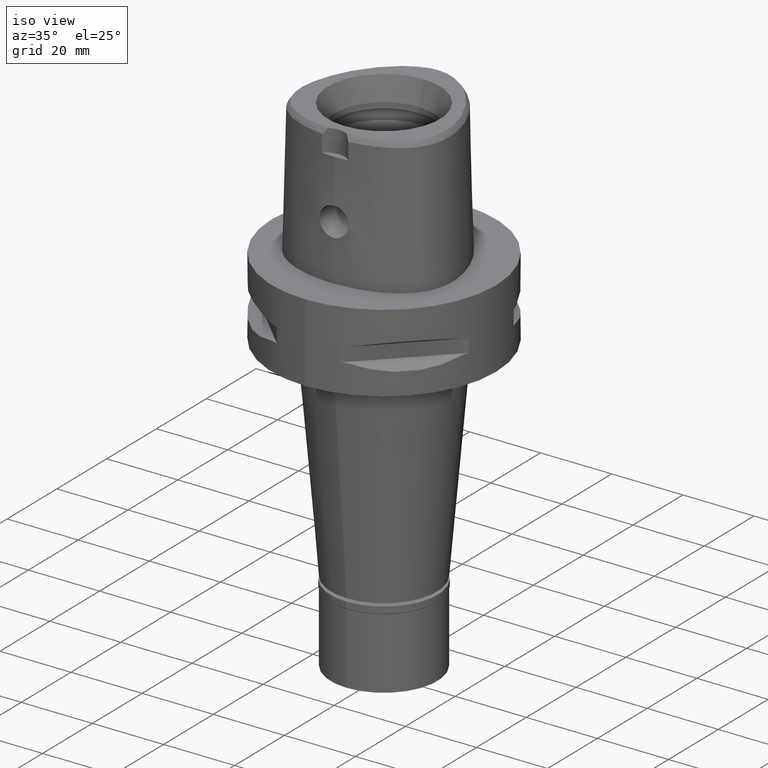
[diagram: clean part render]
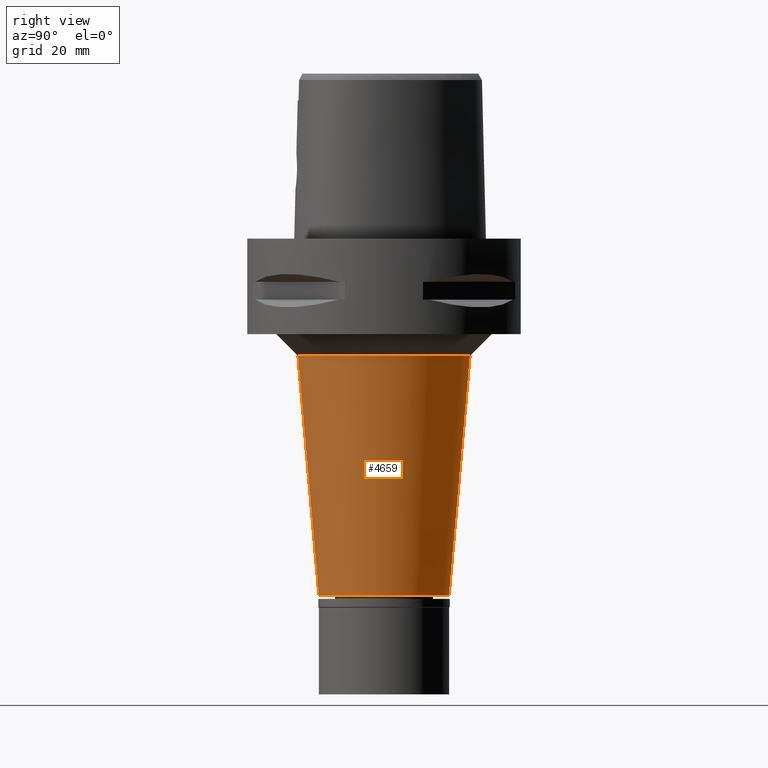
[diagram: tour spotlight — one face highlighted and labeled with its STEP entity id]
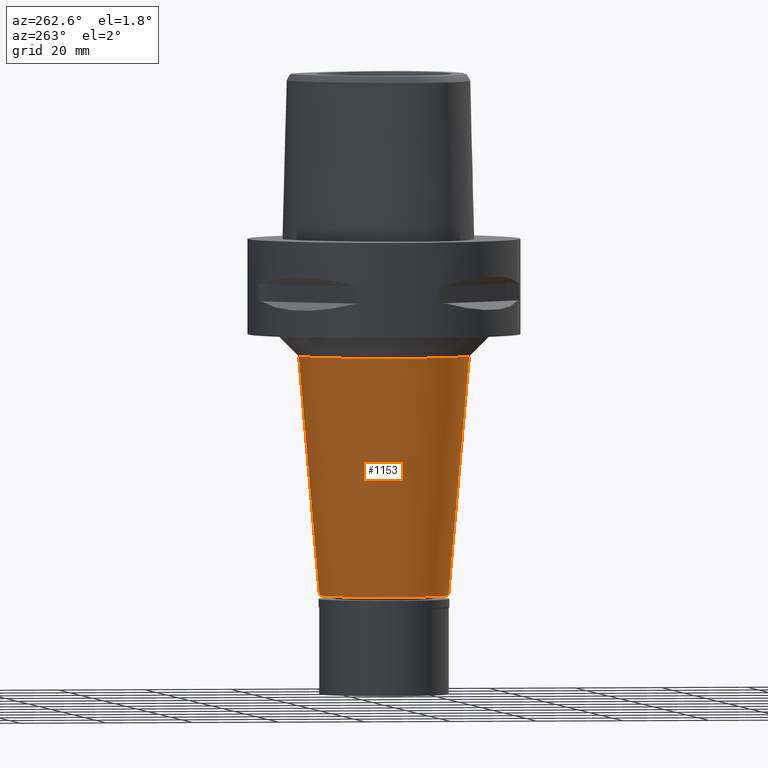
[diagram: tour spotlight — one face highlighted and labeled with its STEP entity id]
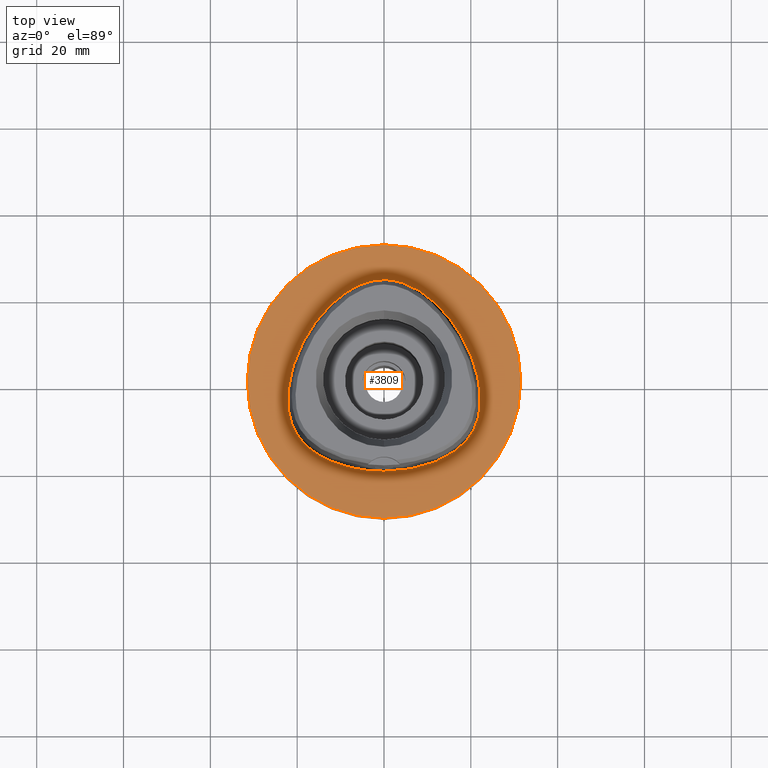
[diagram: tour spotlight — one face highlighted and labeled with its STEP entity id]
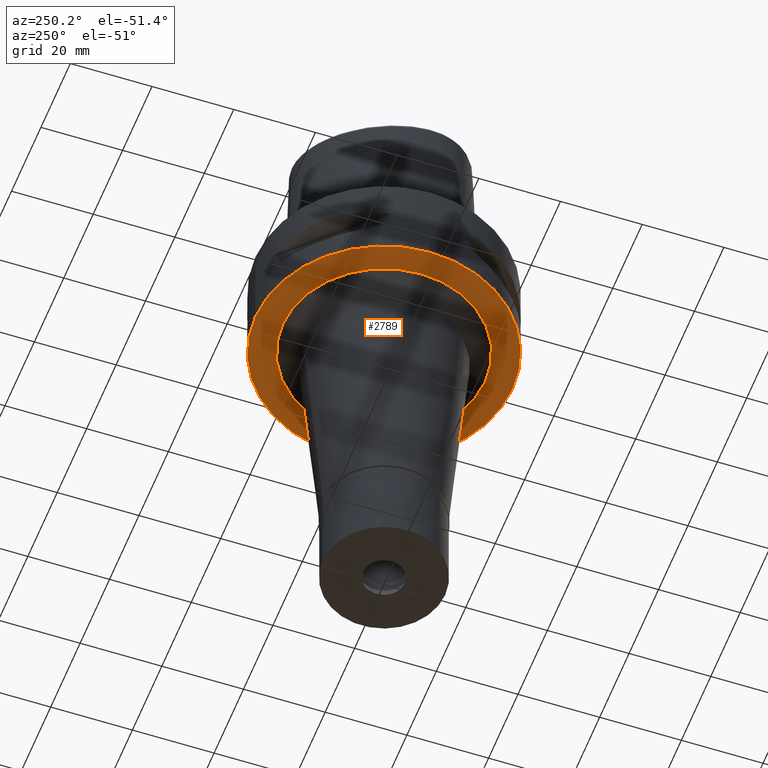
[diagram: tour spotlight — one face highlighted and labeled with its STEP entity id]
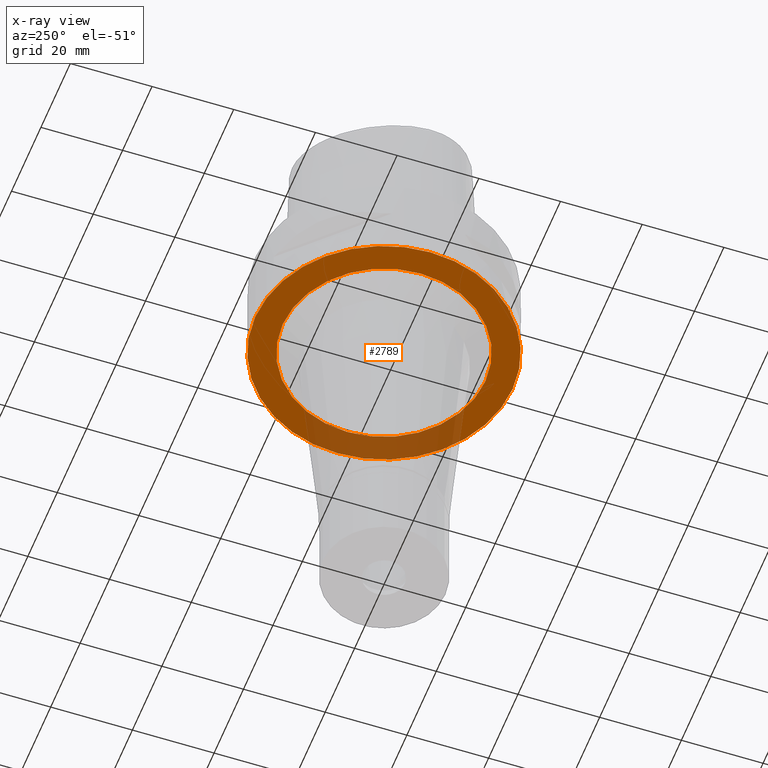
[diagram: x-ray of the same camera — body ghosted, this tour face saturated]
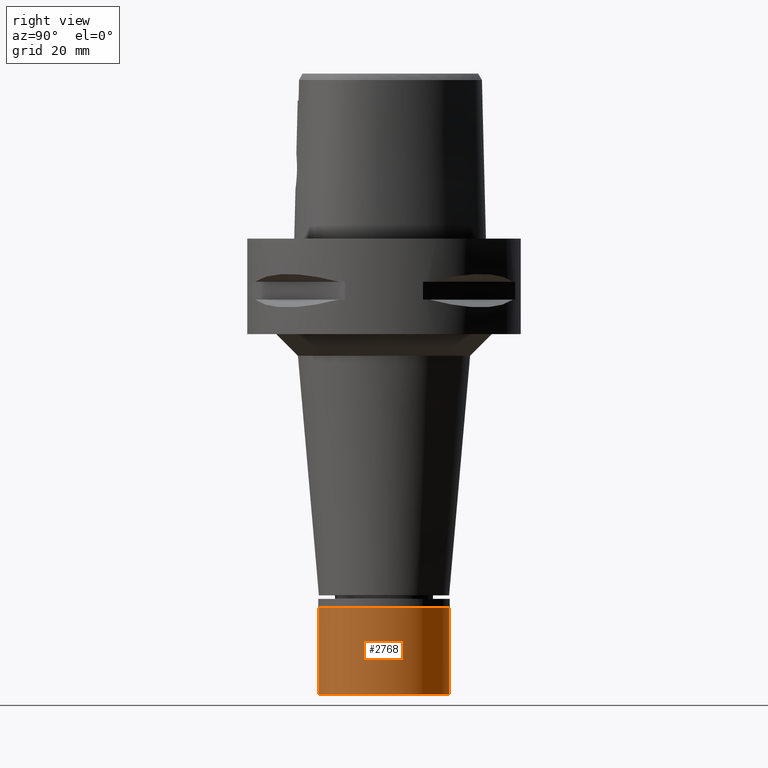
[diagram: tour spotlight — one face highlighted and labeled with its STEP entity id]
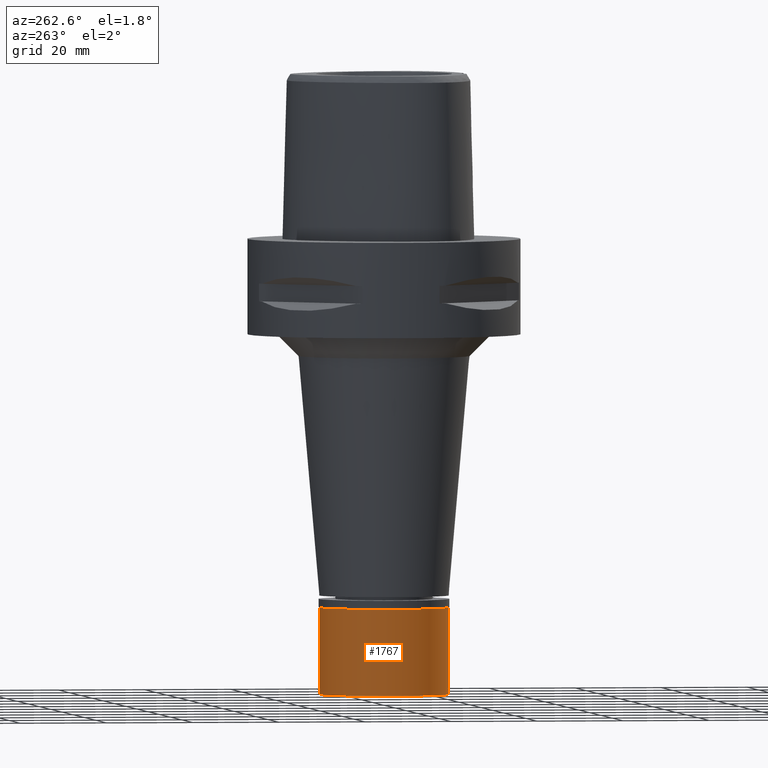
[diagram: tour spotlight — one face highlighted and labeled with its STEP entity id]
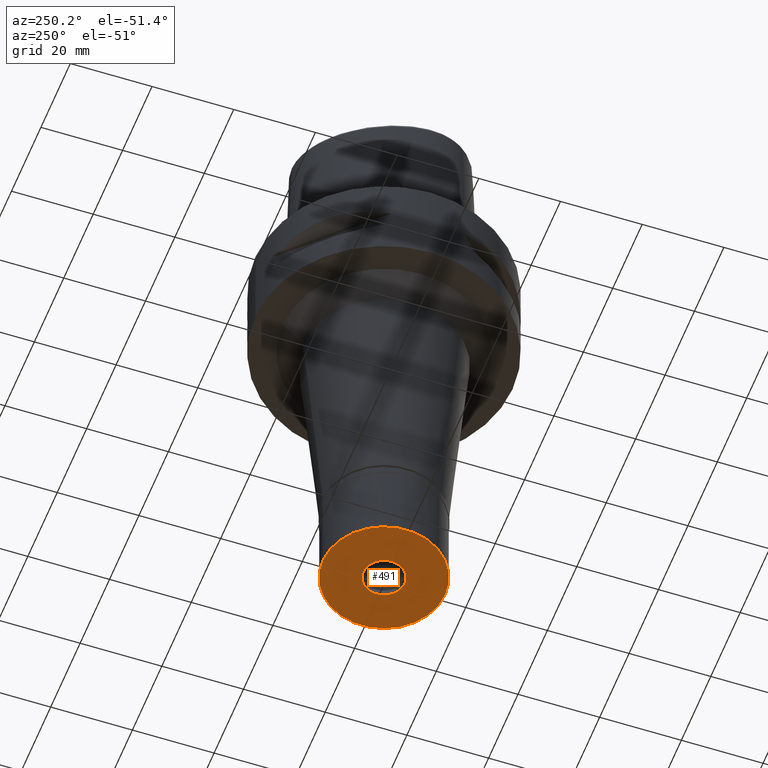
[diagram: tour spotlight — one face highlighted and labeled with its STEP entity id]
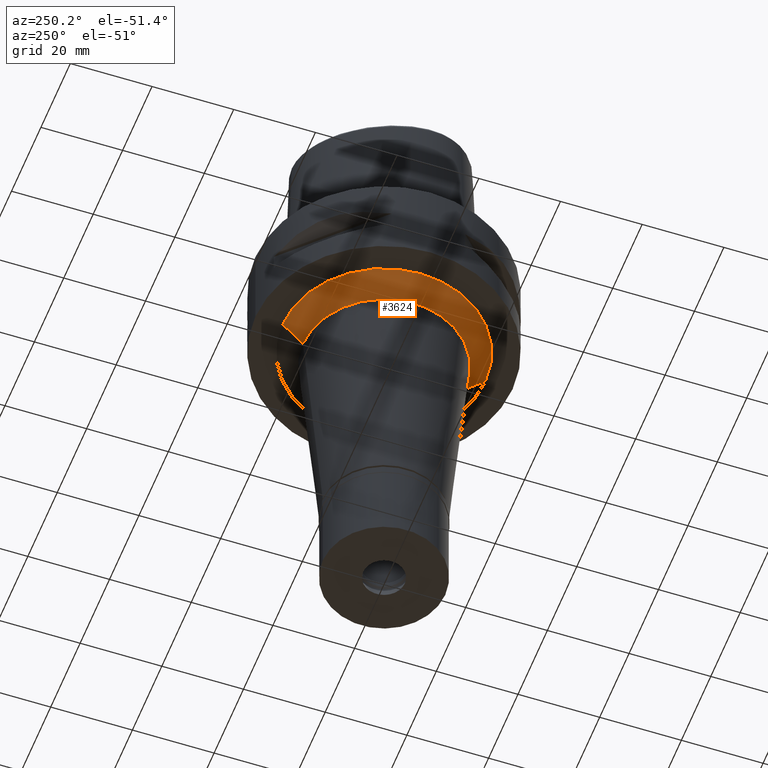
[diagram: tour spotlight — one face highlighted and labeled with its STEP entity id]
A machine part: a face-by-face anatomy tour. The part has 100 B-rep faces; the first image is the clean iso view, then the 8 largest visible faces are spotlighted one at a time (largest first), each with its STEP entity span.

Face 1 — right view, entity #4659. In plain terms, the highlighted conical surface has half-angle 5 deg.
Definition (entity closure, byte-faithful):
#25 = CARTESIAN_POINT ( 'NONE',  ( 0.0000000000000000000, -19.82937422663000149, -27.00000000000000000 ) ) ;
#178 = DIRECTION ( 'NONE',  ( 0.0000000000000000000, 0.0000000000000000000, 1.000000000000000000 ) ) ;
#235 = VECTOR ( 'NONE', #2053, 1000.000000000000114 ) ;
#330 = CARTESIAN_POINT ( 'NONE',  ( 0.0000000000000000000, 0.0000000000000000000, -82.19999999999998863 ) ) ;
#389 = AXIS2_PLACEMENT_3D ( 'NONE', #1570, #2321, #4963 ) ;
#490 = CARTESIAN_POINT ( 'NONE',  ( 0.0000000000000000000, -19.82937422663000149, -27.00000000000000000 ) ) ;
#679 = EDGE_CURVE ( 'NONE', #2207, #4305, #1675, .T. ) ;
#875 = LINE ( 'NONE', #490, #235 ) ;
#1225 = EDGE_LOOP ( 'NONE', ( #4009, #2765, #2137, #3074 ) ) ;
#1416 = VERTEX_POINT ( 'NONE', #25 ) ;
#1570 = CARTESIAN_POINT ( 'NONE',  ( 0.0000000000000000000, 0.0000000000000000000, -27.00000000000000000 ) ) ;
#1573 = CARTESIAN_POINT ( 'NONE',  ( 0.0000000000000000000, 19.82937422663000149, -27.00000000000000000 ) ) ;
#1675 = LINE ( 'NONE', #1573, #3559 ) ;
#1705 = CARTESIAN_POINT ( 'NONE',  ( 0.0000000000000000000, 19.82937422663000149, -27.00000000000000000 ) ) ;
#2053 = DIRECTION ( 'NONE',  ( 0.0000000000000000000, 0.08715574274764407992, -0.9961946980917467664 ) ) ;
#2137 = ORIENTED_EDGE ( 'NONE', *, *, #4267, .T. ) ;
#2207 = VERTEX_POINT ( 'NONE', #1705 ) ;
#2321 = DIRECTION ( 'NONE',  ( 0.0000000000000000000, 0.0000000000000000000, 1.000000000000000000 ) ) ;
#2364 = EDGE_CURVE ( 'NONE', #1416, #4188, #875, .T. ) ;
#2662 = CIRCLE ( 'NONE', #3669, 15.00000000000000000 ) ;
#2679 = CARTESIAN_POINT ( 'NONE',  ( 0.0000000000000000000, 15.00000000000000000, -82.19999999999998863 ) ) ;
#2699 = DIRECTION ( 'NONE',  ( 0.0000000000000000000, -1.000000000000000000, 0.0000000000000000000 ) ) ;
#2716 = CARTESIAN_POINT ( 'NONE',  ( 0.0000000000000000000, -15.00000000000000000, -82.19999999999998863 ) ) ;
#2752 = CONICAL_SURFACE ( 'NONE', #4860, 17.41468711331999941, 0.08726646259969973729 ) ;
#2765 = ORIENTED_EDGE ( 'NONE', *, *, #2364, .T. ) ;
#2837 = CIRCLE ( 'NONE', #389, 19.82937422664000238 ) ;
#2940 = FACE_OUTER_BOUND ( 'NONE', #1225, .T. ) ;
#2961 = CARTESIAN_POINT ( 'NONE',  ( 0.0000000000000000000, 0.0000000000000000000, -54.60000000000000142 ) ) ;
#3074 = ORIENTED_EDGE ( 'NONE', *, *, #679, .F. ) ;
#3559 = VECTOR ( 'NONE', #4787, 1000.000000000000114 ) ;
#3669 = AXIS2_PLACEMENT_3D ( 'NONE', #330, #3887, #2699 ) ;
#3887 = DIRECTION ( 'NONE',  ( 0.0000000000000000000, 0.0000000000000000000, 1.000000000000000000 ) ) ;
#4009 = ORIENTED_EDGE ( 'NONE', *, *, #4368, .F. ) ;
#4188 = VERTEX_POINT ( 'NONE', #2716 ) ;
#4267 = EDGE_CURVE ( 'NONE', #4188, #4305, #2662, .T. ) ;
#4305 = VERTEX_POINT ( 'NONE', #2679 ) ;
#4368 = EDGE_CURVE ( 'NONE', #1416, #2207, #2837, .T. ) ;
#4659 = ADVANCED_FACE ( 'NONE', ( #2940 ), #2752, .T. ) ;
#4787 = DIRECTION ( 'NONE',  ( 0.0000000000000000000, -0.08715574274764407992, -0.9961946980917467664 ) ) ;
#4841 = DIRECTION ( 'NONE',  ( 0.0000000000000000000, 1.000000000000000000, 0.0000000000000000000 ) ) ;
#4860 = AXIS2_PLACEMENT_3D ( 'NONE', #2961, #178, #4841 ) ;
#4963 = DIRECTION ( 'NONE',  ( 0.0000000000000000000, -1.000000000000000000, 0.0000000000000000000 ) ) ;

Face 2 — auxiliary view, entity #1153. In plain terms, the highlighted conical surface has half-angle 5 deg.
Definition (entity closure, byte-faithful):
#25 = CARTESIAN_POINT ( 'NONE',  ( 0.0000000000000000000, -19.82937422663000149, -27.00000000000000000 ) ) ;
#235 = VECTOR ( 'NONE', #2053, 1000.000000000000114 ) ;
#300 = CONICAL_SURFACE ( 'NONE', #639, 17.41468711331999941, 0.08726646259969973729 ) ;
#435 = CARTESIAN_POINT ( 'NONE',  ( 0.0000000000000000000, 0.0000000000000000000, -82.19999999999998863 ) ) ;
#490 = CARTESIAN_POINT ( 'NONE',  ( 0.0000000000000000000, -19.82937422663000149, -27.00000000000000000 ) ) ;
#639 = AXIS2_PLACEMENT_3D ( 'NONE', #3084, #2299, #1104 ) ;
#679 = EDGE_CURVE ( 'NONE', #2207, #4305, #1675, .T. ) ;
#734 = ORIENTED_EDGE ( 'NONE', *, *, #2364, .F. ) ;
#875 = LINE ( 'NONE', #490, #235 ) ;
#1023 = ORIENTED_EDGE ( 'NONE', *, *, #2106, .T. ) ;
#1104 = DIRECTION ( 'NONE',  ( 0.0000000000000000000, 1.000000000000000000, 0.0000000000000000000 ) ) ;
#1134 = CIRCLE ( 'NONE', #3075, 19.82937422663000149 ) ;
#1153 = ADVANCED_FACE ( 'NONE', ( #3375 ), #300, .T. ) ;
#1416 = VERTEX_POINT ( 'NONE', #25 ) ;
#1573 = CARTESIAN_POINT ( 'NONE',  ( 0.0000000000000000000, 19.82937422663000149, -27.00000000000000000 ) ) ;
#1574 = DIRECTION ( 'NONE',  ( 0.0000000000000000000, 0.0000000000000000000, -1.000000000000000000 ) ) ;
#1675 = LINE ( 'NONE', #1573, #3559 ) ;
#1705 = CARTESIAN_POINT ( 'NONE',  ( 0.0000000000000000000, 19.82937422663000149, -27.00000000000000000 ) ) ;
#1924 = DIRECTION ( 'NONE',  ( 0.0000000000000000000, -1.000000000000000000, 0.0000000000000000000 ) ) ;
#1942 = EDGE_CURVE ( 'NONE', #1416, #2207, #1134, .T. ) ;
#1993 = DIRECTION ( 'NONE',  ( 0.0000000000000000000, 1.000000000000000000, 0.0000000000000000000 ) ) ;
#2053 = DIRECTION ( 'NONE',  ( 0.0000000000000000000, 0.08715574274764407992, -0.9961946980917467664 ) ) ;
#2106 = EDGE_CURVE ( 'NONE', #4305, #4188, #3987, .T. ) ;
#2207 = VERTEX_POINT ( 'NONE', #1705 ) ;
#2299 = DIRECTION ( 'NONE',  ( 0.0000000000000000000, 0.0000000000000000000, 1.000000000000000000 ) ) ;
#2364 = EDGE_CURVE ( 'NONE', #1416, #4188, #875, .T. ) ;
#2399 = DIRECTION ( 'NONE',  ( 0.0000000000000000000, 0.0000000000000000000, 1.000000000000000000 ) ) ;
#2432 = AXIS2_PLACEMENT_3D ( 'NONE', #435, #2399, #1993 ) ;
#2679 = CARTESIAN_POINT ( 'NONE',  ( 0.0000000000000000000, 15.00000000000000000, -82.19999999999998863 ) ) ;
#2716 = CARTESIAN_POINT ( 'NONE',  ( 0.0000000000000000000, -15.00000000000000000, -82.19999999999998863 ) ) ;
#3075 = AXIS2_PLACEMENT_3D ( 'NONE', #4270, #1574, #1924 ) ;
#3084 = CARTESIAN_POINT ( 'NONE',  ( 0.0000000000000000000, 0.0000000000000000000, -54.60000000000000142 ) ) ;
#3375 = FACE_OUTER_BOUND ( 'NONE', #3595, .T. ) ;
#3556 = ORIENTED_EDGE ( 'NONE', *, *, #679, .T. ) ;
#3559 = VECTOR ( 'NONE', #4787, 1000.000000000000114 ) ;
#3595 = EDGE_LOOP ( 'NONE', ( #1023, #734, #4170, #3556 ) ) ;
#3987 = CIRCLE ( 'NONE', #2432, 15.00000000000000000 ) ;
#4170 = ORIENTED_EDGE ( 'NONE', *, *, #1942, .T. ) ;
#4188 = VERTEX_POINT ( 'NONE', #2716 ) ;
#4270 = CARTESIAN_POINT ( 'NONE',  ( 0.0000000000000000000, 0.0000000000000000000, -27.00000000000000000 ) ) ;
#4305 = VERTEX_POINT ( 'NONE', #2679 ) ;
#4787 = DIRECTION ( 'NONE',  ( 0.0000000000000000000, -0.08715574274764407992, -0.9961946980917467664 ) ) ;

Face 3 — top view, entity #3809. In plain terms, the highlighted planar face has unit normal (0, 0, -1).
Definition (entity closure, byte-faithful):
#95 = CARTESIAN_POINT ( 'NONE',  ( 0.0000000000000000000, 0.0000000000000000000, 0.0000000000000000000 ) ) ;
#197 = VERTEX_POINT ( 'NONE', #3954 ) ;
#244 = CARTESIAN_POINT ( 'NONE',  ( -1.042620331105000251E-11, -20.67499999999999716, 1.260473207290999897E-13 ) ) ;
#265 = CARTESIAN_POINT ( 'NONE',  ( -14.40795638994645067, 15.64093750030242091, -1.905867336778749310E-08 ) ) ;
#269 = EDGE_CURVE ( 'NONE', #1082, #2442, #1519, .T. ) ;
#285 = CARTESIAN_POINT ( 'NONE',  ( 18.56841063353252963, -14.16937986587638321, 9.817071448022917507E-07 ) ) ;
#339 = CARTESIAN_POINT ( 'NONE',  ( 5.537052849976000441E-11, 23.47499999999000053, 1.231977482991999938E-13 ) ) ;
#367 = EDGE_LOOP ( 'NONE', ( #910, #3071 ) ) ;
#676 = CARTESIAN_POINT ( 'NONE',  ( -2.564517727055091179, 23.29328125047070230, -1.905867336778749310E-08 ) ) ;
#766 = CARTESIAN_POINT ( 'NONE',  ( 10.74572889472394621, 19.17433591859747466, 9.817071448022917507E-07 ) ) ;
#818 = DIRECTION ( 'NONE',  ( 0.0000000000000000000, 0.0000000000000000000, -1.000000000000000000 ) ) ;
#910 = ORIENTED_EDGE ( 'NONE', *, *, #3396, .F. ) ;
#965 = ORIENTED_EDGE ( 'NONE', *, *, #3579, .F. ) ;
#1024 = CARTESIAN_POINT ( 'NONE',  ( -5.098437017460804022, 22.52602539107423141, -1.905867336778749310E-08 ) ) ;
#1056 = AXIS2_PLACEMENT_3D ( 'NONE', #2078, #3634, #1785 ) ;
#1071 = CARTESIAN_POINT ( 'NONE',  ( 0.8548392405695658391, 23.47499997546010064, 9.817071448022917507E-07 ) ) ;
#1082 = VERTEX_POINT ( 'NONE', #2648 ) ;
#1113 = CARTESIAN_POINT ( 'NONE',  ( 22.05732871882319657, -6.847636715243154981, 9.817071448022917507E-07 ) ) ;
#1169 = VERTEX_POINT ( 'NONE', #1845 ) ;
#1193 = DIRECTION ( 'NONE',  ( 0.0000000000000000000, 1.000000000000000000, 0.0000000000000000000 ) ) ;
#1337 = EDGE_LOOP ( 'NONE', ( #1670, #965 ) ) ;
#1413 = CARTESIAN_POINT ( 'NONE',  ( -20.34961798598781257, -11.74885742211308148, -1.905867336778749310E-08 ) ) ;
#1452 = CARTESIAN_POINT ( 'NONE',  ( 22.24453905393284714, -4.100468750144046659, 9.817071448022917507E-07 ) ) ;
#1479 = CARTESIAN_POINT ( 'NONE',  ( 5.537052849976000441E-11, 23.47499999999000053, 1.231977482991999938E-13 ) ) ;
#1481 = CARTESIAN_POINT ( 'NONE',  ( -11.23259756743561688, -18.89324218795852062, -1.905867336778749310E-08 ) ) ;
#1501 = CARTESIAN_POINT ( 'NONE',  ( -22.24453907902966066, -4.100468749996661444, -1.905867336778749310E-08 ) ) ;
#1519 = B_SPLINE_CURVE_WITH_KNOTS ( 'NONE', 3,
 ( #339, #2201, #676, #1024, #5003, #2619, #265, #3760, #2290, #3851, #1501, #3004, #4905, #3416, #1413, #2240, #3802, #3045, #4979, #1481, #3024, #3344, #244 ),
 .UNSPECIFIED., .F., .F.,
 ( 4, 1, 1, 1, 1, 1, 1, 1, 1, 1, 1, 1, 1, 1, 1, 1, 1, 1, 1, 1, 4 ),
 ( 0.0000000000000000000, 0.04166666666751999565, 0.08333333333413001087, 0.1250000000007999990, 0.1666666666674000152, 0.2500000000006000200, 0.3333333333337999971, 0.4166666666671000052, 0.5000000000002999823, 0.5416666666670000296, 0.5833333333335000148, 0.6250000000001999512, 0.6458333333335000148, 0.6666666666667999674, 0.6875000000001000311, 0.7083333333333999837, 0.7500000000000000000, 0.7916666666667000474, 0.8333333333333000637, 0.9166666666666000163, 1.000000000000000000 ),
 .UNSPECIFIED. ) ;
#1670 = ORIENTED_EDGE ( 'NONE', *, *, #269, .F. ) ;
#1785 = DIRECTION ( 'NONE',  ( 0.0000000000000000000, -1.000000000000000000, 0.0000000000000000000 ) ) ;
#1808 = FACE_BOUND ( 'NONE', #1337, .T. ) ;
#1845 = CARTESIAN_POINT ( 'NONE',  ( 0.0000000000000000000, 31.50000000000000000, 0.0000000000000000000 ) ) ;
#1904 = CARTESIAN_POINT ( 'NONE',  ( 6.341471014851029153, -20.29812497571617769, 9.817071448022917507E-07 ) ) ;
#1927 = CARTESIAN_POINT ( 'NONE',  ( 20.93173249966272209, -10.60431639625411471, 9.817071448022917507E-07 ) ) ;
#2078 = CARTESIAN_POINT ( 'NONE',  ( 0.0000000000000000000, 0.0000000000000000000, 0.0000000000000000000 ) ) ;
#2164 = CARTESIAN_POINT ( 'NONE',  ( -1.042620331105000251E-11, -20.67499999999999716, 1.260473207290999897E-13 ) ) ;
#2201 = CARTESIAN_POINT ( 'NONE',  ( -0.8548392423343361690, 23.47500000047769930, -1.905867336778749310E-08 ) ) ;
#2238 = CARTESIAN_POINT ( 'NONE',  ( 19.64947363874777153, -12.82525389180143804, 9.817071448022917507E-07 ) ) ;
#2240 = CARTESIAN_POINT ( 'NONE',  ( -19.64947365902260046, -12.82525390652307173, -1.905867336778749310E-08 ) ) ;
#2290 = CARTESIAN_POINT ( 'NONE',  ( -20.74942740924770845, 4.657187500162146776, -1.905867336778749310E-08 ) ) ;
#2327 = CARTESIAN_POINT ( 'NONE',  ( 2.564517721911329762, 23.29328122582817784, 9.817071448022917507E-07 ) ) ;
#2442 = VERTEX_POINT ( 'NONE', #2164 ) ;
#2526 = AXIS2_PLACEMENT_3D ( 'NONE', #95, #818, #3631 ) ;
#2619 = CARTESIAN_POINT ( 'NONE',  ( -10.74572891090422111, 19.17433593786475043, -1.905867336778749310E-08 ) ) ;
#2648 = CARTESIAN_POINT ( 'NONE',  ( 5.537052849976000441E-11, 23.47499999999000053, 1.231977482991999938E-13 ) ) ;
#2656 = CARTESIAN_POINT ( 'NONE',  ( 2.113823671608610066, -20.67499997545576562, 9.817071448022917507E-07 ) ) ;
#2707 = CARTESIAN_POINT ( 'NONE',  ( 14.67337963200851370, -17.21410154110925816, 9.817071448022917507E-07 ) ) ;
#2758 = AXIS2_PLACEMENT_3D ( 'NONE', #4304, #3262, #1193 ) ;
#3004 = CARTESIAN_POINT ( 'NONE',  ( -22.05732874369826746, -6.847636718817725843, -1.905867336778749310E-08 ) ) ;
#3024 = CARTESIAN_POINT ( 'NONE',  ( -6.341471019296731626, -20.29812500047623658, -1.905867336778749310E-08 ) ) ;
#3042 = CARTESIAN_POINT ( 'NONE',  ( 20.34961796427436553, -11.74885740957937053, 9.817071448022917507E-07 ) ) ;
#3045 = CARTESIAN_POINT ( 'NONE',  ( -16.95889172622826280, -15.67838867224692301, -1.905867336778749310E-08 ) ) ;
#3066 = CARTESIAN_POINT ( 'NONE',  ( -1.042620331105000251E-11, -20.67499999999999716, 1.260473207290999897E-13 ) ) ;
#3071 = ORIENTED_EDGE ( 'NONE', *, *, #4559, .F. ) ;
#3252 = CIRCLE ( 'NONE', #2526, 31.50000000000000000 ) ;
#3262 = DIRECTION ( 'NONE',  ( 0.0000000000000000000, 0.0000000000000000000, -1.000000000000000000 ) ) ;
#3344 = CARTESIAN_POINT ( 'NONE',  ( -2.113823673092658506, -20.67500000047413877, -1.905867336778749310E-08 ) ) ;
#3354 = PLANE ( 'NONE',  #1056 ) ;
#3396 = EDGE_CURVE ( 'NONE', #1169, #197, #4317, .T. ) ;
#3410 = CARTESIAN_POINT ( 'NONE',  ( 7.571159421916950016, 21.31457029124798552, 9.817071448022917507E-07 ) ) ;
#3416 = CARTESIAN_POINT ( 'NONE',  ( -20.93173252255313699, -10.60431640644926787, -1.905867336778749310E-08 ) ) ;
#3454 = CARTESIAN_POINT ( 'NONE',  ( 14.40795637072121593, 15.64093748407562678, 9.817071448022917507E-07 ) ) ;
#3579 = EDGE_CURVE ( 'NONE', #2442, #1082, #4159, .T. ) ;
#3631 = DIRECTION ( 'NONE',  ( 0.0000000000000000000, -1.000000000000000000, 0.0000000000000000000 ) ) ;
#3634 = DIRECTION ( 'NONE',  ( 0.0000000000000000000, 0.0000000000000000000, -1.000000000000000000 ) ) ;
#3760 = CARTESIAN_POINT ( 'NONE',  ( -18.06826688568335726, 10.43171875024557949, -1.905867336778749310E-08 ) ) ;
#3802 = CARTESIAN_POINT ( 'NONE',  ( -18.56841065177191297, -14.16937988314320229, -1.905867336778749310E-08 ) ) ;
#3809 = ADVANCED_FACE ( 'NONE', ( #4460, #1808 ), #3354, .F. ) ;
#3851 = CARTESIAN_POINT ( 'NONE',  ( -21.97832647834080078, -0.2810937499166801246, -1.905867336778749310E-08 ) ) ;
#3954 = CARTESIAN_POINT ( 'NONE',  ( 0.0000000000000000000, -31.50000000000000000, 0.0000000000000000000 ) ) ;
#4159 = B_SPLINE_CURVE_WITH_KNOTS ( 'NONE', 3,
 ( #3066, #2656, #1904, #4641, #2707, #4947, #285, #2238, #3042, #1927, #4616, #1113, #1452, #4571, #4592, #4183, #3454, #766, #3410, #4226, #2327, #1071, #1479 ),
 .UNSPECIFIED., .F., .F.,
 ( 4, 1, 1, 1, 1, 1, 1, 1, 1, 1, 1, 1, 1, 1, 1, 1, 1, 1, 1, 1, 4 ),
 ( 0.0000000000000000000, 0.08333333333343000138, 0.1666666666668000230, 0.2083333333333000081, 0.2500000000000000000, 0.2916666666666999919, 0.3125000000000000000, 0.3333333333333000081, 0.3541666666666999919, 0.3750000000000000000, 0.4166666666666000163, 0.4583333333332000326, 0.4999999999998999689, 0.5833333333332000326, 0.6666666666664999852, 0.7499999999998000488, 0.8333333333329999704, 0.8749999999997000177, 0.9166666666664000651, 0.9583333333329999704, 1.000000000000000000 ),
 .UNSPECIFIED. ) ;
#4183 = CARTESIAN_POINT ( 'NONE',  ( 18.06826686390165904, 10.43171873767268742, 9.817071448022917507E-07 ) ) ;
#4226 = CARTESIAN_POINT ( 'NONE',  ( 5.098437008123231529, 22.52602536774805486, 9.817071448022917507E-07 ) ) ;
#4304 = CARTESIAN_POINT ( 'NONE',  ( 0.0000000000000000000, 0.0000000000000000000, 0.0000000000000000000 ) ) ;
#4317 = CIRCLE ( 'NONE', #2758, 31.50000000000000000 ) ;
#4460 = FACE_OUTER_BOUND ( 'NONE', #367, .T. ) ;
#4559 = EDGE_CURVE ( 'NONE', #197, #1169, #3252, .T. ) ;
#4571 = CARTESIAN_POINT ( 'NONE',  ( 21.97832645356323411, -0.2810937542937252398, 9.817071448022917507E-07 ) ) ;
#4592 = CARTESIAN_POINT ( 'NONE',  ( 20.74942738558071298, 4.657187491631326282, 9.817071448022917507E-07 ) ) ;
#4616 = CARTESIAN_POINT ( 'NONE',  ( 21.55524823649441402, -8.996025383607879178, 9.817071448022917507E-07 ) ) ;
#4641 = CARTESIAN_POINT ( 'NONE',  ( 11.23259755884773448, -18.89324216430026482, 9.817071448022917507E-07 ) ) ;
#4905 = CARTESIAN_POINT ( 'NONE',  ( -21.55524826055195575, -8.996025390761413831, -1.905867336778749310E-08 ) ) ;
#4947 = CARTESIAN_POINT ( 'NONE',  ( 16.95889171070615831, -15.67838865249797031, 9.817071448022917507E-07 ) ) ;
#4979 = CARTESIAN_POINT ( 'NONE',  ( -14.67337964443133380, -17.21410156291201687, -1.905867336778749310E-08 ) ) ;
#5003 = CARTESIAN_POINT ( 'NONE',  ( -7.571159434592121151, 21.31457031291499149, -1.905867336778749310E-08 ) ) ;

Face 4 — auxiliary view, entity #2789. An x-ray twin of the same camera follows (body ghosted, this face saturated) — the face is partly hidden behind the body. In plain terms, the highlighted planar face has unit normal (0, 0, -1).
Definition (entity closure, byte-faithful):
#67 = FACE_OUTER_BOUND ( 'NONE', #3350, .T. ) ;
#293 = VERTEX_POINT ( 'NONE', #4739 ) ;
#399 = CARTESIAN_POINT ( 'NONE',  ( 0.0000000000000000000, 0.0000000000000000000, -22.00000000000000000 ) ) ;
#497 = DIRECTION ( 'NONE',  ( 0.0000000000000000000, 0.0000000000000000000, -1.000000000000000000 ) ) ;
#541 = ORIENTED_EDGE ( 'NONE', *, *, #3782, .F. ) ;
#712 = CIRCLE ( 'NONE', #3408, 31.50000000000000000 ) ;
#887 = VERTEX_POINT ( 'NONE', #2186 ) ;
#1220 = EDGE_CURVE ( 'NONE', #887, #3763, #712, .T. ) ;
#1369 = CARTESIAN_POINT ( 'NONE',  ( 0.0000000000000000000, 0.0000000000000000000, -22.00000000000000000 ) ) ;
#1391 = CARTESIAN_POINT ( 'NONE',  ( 0.0000000000000000000, 0.0000000000000000000, -22.00000000000000000 ) ) ;
#1567 = DIRECTION ( 'NONE',  ( 0.0000000000000000000, 0.0000000000000000000, 1.000000000000000000 ) ) ;
#1859 = CIRCLE ( 'NONE', #2269, 24.82937422663000149 ) ;
#2055 = CARTESIAN_POINT ( 'NONE',  ( 0.0000000000000000000, 31.50000000000000000, -22.00000000000000000 ) ) ;
#2109 = CARTESIAN_POINT ( 'NONE',  ( 0.0000000000000000000, 0.0000000000000000000, -22.00000000000000000 ) ) ;
#2149 = DIRECTION ( 'NONE',  ( 0.0000000000000000000, -1.000000000000000000, 0.0000000000000000000 ) ) ;
#2186 = CARTESIAN_POINT ( 'NONE',  ( 0.0000000000000000000, -31.50000000000000000, -22.00000000000000000 ) ) ;
#2269 = AXIS2_PLACEMENT_3D ( 'NONE', #1391, #3761, #4503 ) ;
#2349 = FACE_BOUND ( 'NONE', #3536, .T. ) ;
#2419 = PLANE ( 'NONE',  #3991 ) ;
#2511 = DIRECTION ( 'NONE',  ( 0.0000000000000000000, 0.0000000000000000000, 1.000000000000000000 ) ) ;
#2786 = ORIENTED_EDGE ( 'NONE', *, *, #3137, .F. ) ;
#2789 = ADVANCED_FACE ( 'NONE', ( #67, #2349 ), #2419, .T. ) ;
#2912 = DIRECTION ( 'NONE',  ( 0.0000000000000000000, 0.0000000000000000000, -1.000000000000000000 ) ) ;
#2943 = DIRECTION ( 'NONE',  ( 0.0000000000000000000, 1.000000000000000000, 0.0000000000000000000 ) ) ;
#3137 = EDGE_CURVE ( 'NONE', #293, #4455, #1859, .T. ) ;
#3186 = CARTESIAN_POINT ( 'NONE',  ( 0.0000000000000000000, 0.0000000000000000000, -22.00000000000000000 ) ) ;
#3241 = DIRECTION ( 'NONE',  ( 0.0000000000000000000, -1.000000000000000000, 0.0000000000000000000 ) ) ;
#3350 = EDGE_LOOP ( 'NONE', ( #541, #4363 ) ) ;
#3408 = AXIS2_PLACEMENT_3D ( 'NONE', #3186, #1567, #3913 ) ;
#3536 = EDGE_LOOP ( 'NONE', ( #2786, #4233 ) ) ;
#3747 = AXIS2_PLACEMENT_3D ( 'NONE', #2109, #2511, #2943 ) ;
#3761 = DIRECTION ( 'NONE',  ( 0.0000000000000000000, 0.0000000000000000000, -1.000000000000000000 ) ) ;
#3763 = VERTEX_POINT ( 'NONE', #2055 ) ;
#3782 = EDGE_CURVE ( 'NONE', #3763, #887, #3978, .T. ) ;
#3913 = DIRECTION ( 'NONE',  ( 0.0000000000000000000, -1.000000000000000000, 0.0000000000000000000 ) ) ;
#3952 = AXIS2_PLACEMENT_3D ( 'NONE', #399, #497, #2149 ) ;
#3978 = CIRCLE ( 'NONE', #3747, 31.50000000000000000 ) ;
#3991 = AXIS2_PLACEMENT_3D ( 'NONE', #1369, #2912, #3241 ) ;
#4233 = ORIENTED_EDGE ( 'NONE', *, *, #4769, .F. ) ;
#4275 = CIRCLE ( 'NONE', #3952, 24.82937422663000149 ) ;
#4363 = ORIENTED_EDGE ( 'NONE', *, *, #1220, .F. ) ;
#4455 = VERTEX_POINT ( 'NONE', #4634 ) ;
#4503 = DIRECTION ( 'NONE',  ( 0.0000000000000000000, 1.000000000000000000, 0.0000000000000000000 ) ) ;
#4634 = CARTESIAN_POINT ( 'NONE',  ( 0.0000000000000000000, -24.82937422663000149, -22.00000000000000000 ) ) ;
#4739 = CARTESIAN_POINT ( 'NONE',  ( 0.0000000000000000000, 24.82937422663000149, -22.00000000000000000 ) ) ;
#4769 = EDGE_CURVE ( 'NONE', #4455, #293, #4275, .T. ) ;

Face 5 — right view, entity #2768. In plain terms, the highlighted cylindrical surface (partial cylindrical patch) has radius 15 mm, axis along (0, 0, -1).
Definition (entity closure, byte-faithful):
#79 = LINE ( 'NONE', #134, #1629 ) ;
#82 = ORIENTED_EDGE ( 'NONE', *, *, #3904, .T. ) ;
#134 = CARTESIAN_POINT ( 'NONE',  ( 0.0000000000000000000, 15.00000000000000000, -2.000000000000000000 ) ) ;
#204 = DIRECTION ( 'NONE',  ( 0.0000000000000000000, -1.000000000000000000, 0.0000000000000000000 ) ) ;
#545 = LINE ( 'NONE', #1014, #649 ) ;
#649 = VECTOR ( 'NONE', #4937, 1000.000000000000000 ) ;
#730 = ORIENTED_EDGE ( 'NONE', *, *, #2583, .T. ) ;
#804 = CARTESIAN_POINT ( 'NONE',  ( 0.0000000000000000000, -15.00000000000000000, -22.00000000000000000 ) ) ;
#1014 = CARTESIAN_POINT ( 'NONE',  ( 0.0000000000000000000, -15.00000000000000000, -2.000000000000000000 ) ) ;
#1101 = ORIENTED_EDGE ( 'NONE', *, *, #1539, .T. ) ;
#1213 = AXIS2_PLACEMENT_3D ( 'NONE', #1321, #3693, #204 ) ;
#1234 = DIRECTION ( 'NONE',  ( 0.0000000000000000000, -1.000000000000000000, 0.0000000000000000000 ) ) ;
#1321 = CARTESIAN_POINT ( 'NONE',  ( 0.0000000000000000000, 0.0000000000000000000, -22.00000000000000000 ) ) ;
#1523 = CARTESIAN_POINT ( 'NONE',  ( 0.0000000000000000000, 15.00000000000000000, -22.00000000000000000 ) ) ;
#1539 = EDGE_CURVE ( 'NONE', #3320, #3414, #4157, .T. ) ;
#1629 = VECTOR ( 'NONE', #4332, 1000.000000000000000 ) ;
#1665 = ORIENTED_EDGE ( 'NONE', *, *, #3397, .F. ) ;
#2048 = DIRECTION ( 'NONE',  ( 0.0000000000000000000, 0.0000000000000000000, -1.000000000000000000 ) ) ;
#2372 = FACE_OUTER_BOUND ( 'NONE', #4358, .T. ) ;
#2465 = DIRECTION ( 'NONE',  ( 0.0000000000000000000, 0.0000000000000000000, -1.000000000000000000 ) ) ;
#2583 = EDGE_CURVE ( 'NONE', #3414, #4038, #545, .T. ) ;
#2768 = ADVANCED_FACE ( 'NONE', ( #2372 ), #3160, .T. ) ;
#3160 = CYLINDRICAL_SURFACE ( 'NONE', #3342, 15.00000000000000000 ) ;
#3172 = CARTESIAN_POINT ( 'NONE',  ( 0.0000000000000000000, 0.0000000000000000000, -2.000000000000000000 ) ) ;
#3320 = VERTEX_POINT ( 'NONE', #4187 ) ;
#3342 = AXIS2_PLACEMENT_3D ( 'NONE', #4752, #2048, #1234 ) ;
#3397 = EDGE_CURVE ( 'NONE', #3320, #3566, #79, .T. ) ;
#3414 = VERTEX_POINT ( 'NONE', #4092 ) ;
#3566 = VERTEX_POINT ( 'NONE', #1523 ) ;
#3693 = DIRECTION ( 'NONE',  ( 0.0000000000000000000, 0.0000000000000000000, 1.000000000000000000 ) ) ;
#3904 = EDGE_CURVE ( 'NONE', #4038, #3566, #5048, .T. ) ;
#4024 = DIRECTION ( 'NONE',  ( 0.0000000000000000000, 1.000000000000000000, 0.0000000000000000000 ) ) ;
#4038 = VERTEX_POINT ( 'NONE', #804 ) ;
#4092 = CARTESIAN_POINT ( 'NONE',  ( 0.0000000000000000000, -15.00000000000000000, -2.000000000000000000 ) ) ;
#4157 = CIRCLE ( 'NONE', #5053, 15.00000000000000000 ) ;
#4187 = CARTESIAN_POINT ( 'NONE',  ( 0.0000000000000000000, 15.00000000000000000, -2.000000000000000000 ) ) ;
#4332 = DIRECTION ( 'NONE',  ( 0.0000000000000000000, 0.0000000000000000000, -1.000000000000000000 ) ) ;
#4358 = EDGE_LOOP ( 'NONE', ( #1101, #730, #82, #1665 ) ) ;
#4752 = CARTESIAN_POINT ( 'NONE',  ( 0.0000000000000000000, 0.0000000000000000000, 0.0000000000000000000 ) ) ;
#4937 = DIRECTION ( 'NONE',  ( 0.0000000000000000000, 0.0000000000000000000, -1.000000000000000000 ) ) ;
#5048 = CIRCLE ( 'NONE', #1213, 15.00000000000000000 ) ;
#5053 = AXIS2_PLACEMENT_3D ( 'NONE', #3172, #2465, #4024 ) ;

Face 6 — auxiliary view, entity #1767. In plain terms, the highlighted cylindrical surface (partial cylindrical patch) has radius 15 mm, axis along (0, 0, -1).
Definition (entity closure, byte-faithful):
#32 = CARTESIAN_POINT ( 'NONE',  ( 0.0000000000000000000, 0.0000000000000000000, -2.000000000000000000 ) ) ;
#79 = LINE ( 'NONE', #134, #1629 ) ;
#134 = CARTESIAN_POINT ( 'NONE',  ( 0.0000000000000000000, 15.00000000000000000, -2.000000000000000000 ) ) ;
#214 = EDGE_CURVE ( 'NONE', #3414, #3320, #3475, .T. ) ;
#260 = CYLINDRICAL_SURFACE ( 'NONE', #1057, 15.00000000000000000 ) ;
#462 = AXIS2_PLACEMENT_3D ( 'NONE', #32, #4722, #475 ) ;
#475 = DIRECTION ( 'NONE',  ( 0.0000000000000000000, -1.000000000000000000, 0.0000000000000000000 ) ) ;
#545 = LINE ( 'NONE', #1014, #649 ) ;
#649 = VECTOR ( 'NONE', #4937, 1000.000000000000000 ) ;
#737 = CARTESIAN_POINT ( 'NONE',  ( 0.0000000000000000000, 0.0000000000000000000, -22.00000000000000000 ) ) ;
#804 = CARTESIAN_POINT ( 'NONE',  ( 0.0000000000000000000, -15.00000000000000000, -22.00000000000000000 ) ) ;
#1014 = CARTESIAN_POINT ( 'NONE',  ( 0.0000000000000000000, -15.00000000000000000, -2.000000000000000000 ) ) ;
#1057 = AXIS2_PLACEMENT_3D ( 'NONE', #4902, #4519, #2898 ) ;
#1119 = ORIENTED_EDGE ( 'NONE', *, *, #4473, .T. ) ;
#1353 = FACE_OUTER_BOUND ( 'NONE', #1637, .T. ) ;
#1523 = CARTESIAN_POINT ( 'NONE',  ( 0.0000000000000000000, 15.00000000000000000, -22.00000000000000000 ) ) ;
#1629 = VECTOR ( 'NONE', #4332, 1000.000000000000000 ) ;
#1637 = EDGE_LOOP ( 'NONE', ( #1119, #3372, #4089, #3805 ) ) ;
#1767 = ADVANCED_FACE ( 'NONE', ( #1353 ), #260, .T. ) ;
#1868 = CIRCLE ( 'NONE', #3488, 15.00000000000000000 ) ;
#2301 = DIRECTION ( 'NONE',  ( 0.0000000000000000000, 0.0000000000000000000, 1.000000000000000000 ) ) ;
#2583 = EDGE_CURVE ( 'NONE', #3414, #4038, #545, .T. ) ;
#2898 = DIRECTION ( 'NONE',  ( 0.0000000000000000000, -1.000000000000000000, 0.0000000000000000000 ) ) ;
#3320 = VERTEX_POINT ( 'NONE', #4187 ) ;
#3372 = ORIENTED_EDGE ( 'NONE', *, *, #2583, .F. ) ;
#3397 = EDGE_CURVE ( 'NONE', #3320, #3566, #79, .T. ) ;
#3414 = VERTEX_POINT ( 'NONE', #4092 ) ;
#3475 = CIRCLE ( 'NONE', #462, 15.00000000000000000 ) ;
#3488 = AXIS2_PLACEMENT_3D ( 'NONE', #737, #2301, #3862 ) ;
#3566 = VERTEX_POINT ( 'NONE', #1523 ) ;
#3805 = ORIENTED_EDGE ( 'NONE', *, *, #3397, .T. ) ;
#3862 = DIRECTION ( 'NONE',  ( 0.0000000000000000000, 1.000000000000000000, 0.0000000000000000000 ) ) ;
#4038 = VERTEX_POINT ( 'NONE', #804 ) ;
#4089 = ORIENTED_EDGE ( 'NONE', *, *, #214, .T. ) ;
#4092 = CARTESIAN_POINT ( 'NONE',  ( 0.0000000000000000000, -15.00000000000000000, -2.000000000000000000 ) ) ;
#4187 = CARTESIAN_POINT ( 'NONE',  ( 0.0000000000000000000, 15.00000000000000000, -2.000000000000000000 ) ) ;
#4332 = DIRECTION ( 'NONE',  ( 0.0000000000000000000, 0.0000000000000000000, -1.000000000000000000 ) ) ;
#4473 = EDGE_CURVE ( 'NONE', #3566, #4038, #1868, .T. ) ;
#4519 = DIRECTION ( 'NONE',  ( 0.0000000000000000000, 0.0000000000000000000, -1.000000000000000000 ) ) ;
#4722 = DIRECTION ( 'NONE',  ( 0.0000000000000000000, 0.0000000000000000000, -1.000000000000000000 ) ) ;
#4902 = CARTESIAN_POINT ( 'NONE',  ( 0.0000000000000000000, 0.0000000000000000000, 0.0000000000000000000 ) ) ;
#4937 = DIRECTION ( 'NONE',  ( 0.0000000000000000000, 0.0000000000000000000, -1.000000000000000000 ) ) ;

Face 7 — auxiliary view, entity #491. In plain terms, the highlighted planar face has unit normal (0, 0, -1).
Definition (entity closure, byte-faithful):
#27 = FACE_OUTER_BOUND ( 'NONE', #596, .T. ) ;
#204 = DIRECTION ( 'NONE',  ( 0.0000000000000000000, -1.000000000000000000, 0.0000000000000000000 ) ) ;
#491 = ADVANCED_FACE ( 'NONE', ( #27, #2310 ), #5056, .T. ) ;
#556 = AXIS2_PLACEMENT_3D ( 'NONE', #3831, #2661, #2688 ) ;
#596 = EDGE_LOOP ( 'NONE', ( #4579, #2479 ) ) ;
#737 = CARTESIAN_POINT ( 'NONE',  ( 0.0000000000000000000, 0.0000000000000000000, -22.00000000000000000 ) ) ;
#804 = CARTESIAN_POINT ( 'NONE',  ( 0.0000000000000000000, -15.00000000000000000, -22.00000000000000000 ) ) ;
#1165 = DIRECTION ( 'NONE',  ( 0.0000000000000000000, 0.0000000000000000000, -1.000000000000000000 ) ) ;
#1174 = ORIENTED_EDGE ( 'NONE', *, *, #3277, .F. ) ;
#1213 = AXIS2_PLACEMENT_3D ( 'NONE', #1321, #3693, #204 ) ;
#1321 = CARTESIAN_POINT ( 'NONE',  ( 0.0000000000000000000, 0.0000000000000000000, -22.00000000000000000 ) ) ;
#1476 = CARTESIAN_POINT ( 'NONE',  ( 0.0000000000000000000, 5.100000000001000622, -22.00000000000000000 ) ) ;
#1523 = CARTESIAN_POINT ( 'NONE',  ( 0.0000000000000000000, 15.00000000000000000, -22.00000000000000000 ) ) ;
#1801 = DIRECTION ( 'NONE',  ( 0.0000000000000000000, 1.000000000000000000, 0.0000000000000000000 ) ) ;
#1868 = CIRCLE ( 'NONE', #3488, 15.00000000000000000 ) ;
#1872 = AXIS2_PLACEMENT_3D ( 'NONE', #4119, #3735, #1801 ) ;
#1930 = CARTESIAN_POINT ( 'NONE',  ( 0.0000000000000000000, 0.0000000000000000000, -22.00000000000000000 ) ) ;
#2012 = VERTEX_POINT ( 'NONE', #1476 ) ;
#2014 = AXIS2_PLACEMENT_3D ( 'NONE', #1930, #1165, #2710 ) ;
#2301 = DIRECTION ( 'NONE',  ( 0.0000000000000000000, 0.0000000000000000000, 1.000000000000000000 ) ) ;
#2310 = FACE_BOUND ( 'NONE', #4725, .T. ) ;
#2479 = ORIENTED_EDGE ( 'NONE', *, *, #3904, .F. ) ;
#2661 = DIRECTION ( 'NONE',  ( 0.0000000000000000000, 0.0000000000000000000, -1.000000000000000000 ) ) ;
#2688 = DIRECTION ( 'NONE',  ( 0.0000000000000000000, -1.000000000000000000, 0.0000000000000000000 ) ) ;
#2710 = DIRECTION ( 'NONE',  ( 0.0000000000000000000, -1.000000000000000000, 0.0000000000000000000 ) ) ;
#3139 = EDGE_CURVE ( 'NONE', #2012, #5030, #4572, .T. ) ;
#3277 = EDGE_CURVE ( 'NONE', #5030, #2012, #3675, .T. ) ;
#3488 = AXIS2_PLACEMENT_3D ( 'NONE', #737, #2301, #3862 ) ;
#3566 = VERTEX_POINT ( 'NONE', #1523 ) ;
#3675 = CIRCLE ( 'NONE', #556, 5.100000000001000622 ) ;
#3693 = DIRECTION ( 'NONE',  ( 0.0000000000000000000, 0.0000000000000000000, 1.000000000000000000 ) ) ;
#3735 = DIRECTION ( 'NONE',  ( 0.0000000000000000000, 0.0000000000000000000, -1.000000000000000000 ) ) ;
#3831 = CARTESIAN_POINT ( 'NONE',  ( 0.0000000000000000000, 0.0000000000000000000, -22.00000000000000000 ) ) ;
#3862 = DIRECTION ( 'NONE',  ( 0.0000000000000000000, 1.000000000000000000, 0.0000000000000000000 ) ) ;
#3904 = EDGE_CURVE ( 'NONE', #4038, #3566, #5048, .T. ) ;
#4038 = VERTEX_POINT ( 'NONE', #804 ) ;
#4119 = CARTESIAN_POINT ( 'NONE',  ( 0.0000000000000000000, 0.0000000000000000000, -22.00000000000000000 ) ) ;
#4473 = EDGE_CURVE ( 'NONE', #3566, #4038, #1868, .T. ) ;
#4572 = CIRCLE ( 'NONE', #1872, 5.100000000001000622 ) ;
#4579 = ORIENTED_EDGE ( 'NONE', *, *, #4473, .F. ) ;
#4725 = EDGE_LOOP ( 'NONE', ( #4820, #1174 ) ) ;
#4820 = ORIENTED_EDGE ( 'NONE', *, *, #3139, .F. ) ;
#5018 = CARTESIAN_POINT ( 'NONE',  ( 0.0000000000000000000, -5.100000000001000622, -22.00000000000000000 ) ) ;
#5030 = VERTEX_POINT ( 'NONE', #5018 ) ;
#5048 = CIRCLE ( 'NONE', #1213, 15.00000000000000000 ) ;
#5056 = PLANE ( 'NONE',  #2014 ) ;

Face 8 — auxiliary view, entity #3624. In plain terms, the highlighted conical surface has half-angle 45 deg.
Definition (entity closure, byte-faithful):
#25 = CARTESIAN_POINT ( 'NONE',  ( 0.0000000000000000000, -19.82937422663000149, -27.00000000000000000 ) ) ;
#293 = VERTEX_POINT ( 'NONE', #4739 ) ;
#399 = CARTESIAN_POINT ( 'NONE',  ( 0.0000000000000000000, 0.0000000000000000000, -22.00000000000000000 ) ) ;
#420 = ORIENTED_EDGE ( 'NONE', *, *, #1942, .F. ) ;
#497 = DIRECTION ( 'NONE',  ( 0.0000000000000000000, 0.0000000000000000000, -1.000000000000000000 ) ) ;
#748 = EDGE_LOOP ( 'NONE', ( #420, #4144, #3369, #1981 ) ) ;
#931 = LINE ( 'NONE', #4127, #4561 ) ;
#1013 = DIRECTION ( 'NONE',  ( 0.0000000000000000000, -0.7071067811862974395, -0.7071067811867974839 ) ) ;
#1134 = CIRCLE ( 'NONE', #3075, 19.82937422663000149 ) ;
#1139 = DIRECTION ( 'NONE',  ( 0.0000000000000000000, 1.000000000000000000, 0.0000000000000000000 ) ) ;
#1416 = VERTEX_POINT ( 'NONE', #25 ) ;
#1469 = DIRECTION ( 'NONE',  ( 0.0000000000000000000, 0.7071067811862974395, -0.7071067811867974839 ) ) ;
#1553 = VECTOR ( 'NONE', #1469, 1000.000000000000114 ) ;
#1574 = DIRECTION ( 'NONE',  ( 0.0000000000000000000, 0.0000000000000000000, -1.000000000000000000 ) ) ;
#1705 = CARTESIAN_POINT ( 'NONE',  ( 0.0000000000000000000, 19.82937422663000149, -27.00000000000000000 ) ) ;
#1846 = CARTESIAN_POINT ( 'NONE',  ( 0.0000000000000000000, -24.82937422663000149, -22.00000000000000000 ) ) ;
#1924 = DIRECTION ( 'NONE',  ( 0.0000000000000000000, -1.000000000000000000, 0.0000000000000000000 ) ) ;
#1942 = EDGE_CURVE ( 'NONE', #1416, #2207, #1134, .T. ) ;
#1981 = ORIENTED_EDGE ( 'NONE', *, *, #3849, .T. ) ;
#2149 = DIRECTION ( 'NONE',  ( 0.0000000000000000000, -1.000000000000000000, 0.0000000000000000000 ) ) ;
#2207 = VERTEX_POINT ( 'NONE', #1705 ) ;
#2708 = EDGE_CURVE ( 'NONE', #4455, #1416, #3448, .T. ) ;
#3075 = AXIS2_PLACEMENT_3D ( 'NONE', #4270, #1574, #1924 ) ;
#3369 = ORIENTED_EDGE ( 'NONE', *, *, #4769, .T. ) ;
#3448 = LINE ( 'NONE', #1846, #1553 ) ;
#3476 = DIRECTION ( 'NONE',  ( 0.0000000000000000000, 0.0000000000000000000, 1.000000000000000000 ) ) ;
#3624 = ADVANCED_FACE ( 'NONE', ( #3848 ), #3900, .T. ) ;
#3848 = FACE_OUTER_BOUND ( 'NONE', #748, .T. ) ;
#3849 = EDGE_CURVE ( 'NONE', #293, #2207, #931, .T. ) ;
#3900 = CONICAL_SURFACE ( 'NONE', #4306, 22.32937422663000149, 0.7853981633972997312 ) ;
#3952 = AXIS2_PLACEMENT_3D ( 'NONE', #399, #497, #2149 ) ;
#4127 = CARTESIAN_POINT ( 'NONE',  ( 0.0000000000000000000, 24.82937422663000149, -22.00000000000000000 ) ) ;
#4144 = ORIENTED_EDGE ( 'NONE', *, *, #2708, .F. ) ;
#4270 = CARTESIAN_POINT ( 'NONE',  ( 0.0000000000000000000, 0.0000000000000000000, -27.00000000000000000 ) ) ;
#4275 = CIRCLE ( 'NONE', #3952, 24.82937422663000149 ) ;
#4306 = AXIS2_PLACEMENT_3D ( 'NONE', #5051, #3476, #1139 ) ;
#4455 = VERTEX_POINT ( 'NONE', #4634 ) ;
#4561 = VECTOR ( 'NONE', #1013, 1000.000000000000114 ) ;
#4634 = CARTESIAN_POINT ( 'NONE',  ( 0.0000000000000000000, -24.82937422663000149, -22.00000000000000000 ) ) ;
#4739 = CARTESIAN_POINT ( 'NONE',  ( 0.0000000000000000000, 24.82937422663000149, -22.00000000000000000 ) ) ;
#4769 = EDGE_CURVE ( 'NONE', #4455, #293, #4275, .T. ) ;
#5051 = CARTESIAN_POINT ( 'NONE',  ( 0.0000000000000000000, 0.0000000000000000000, -24.50000000000000000 ) ) ;